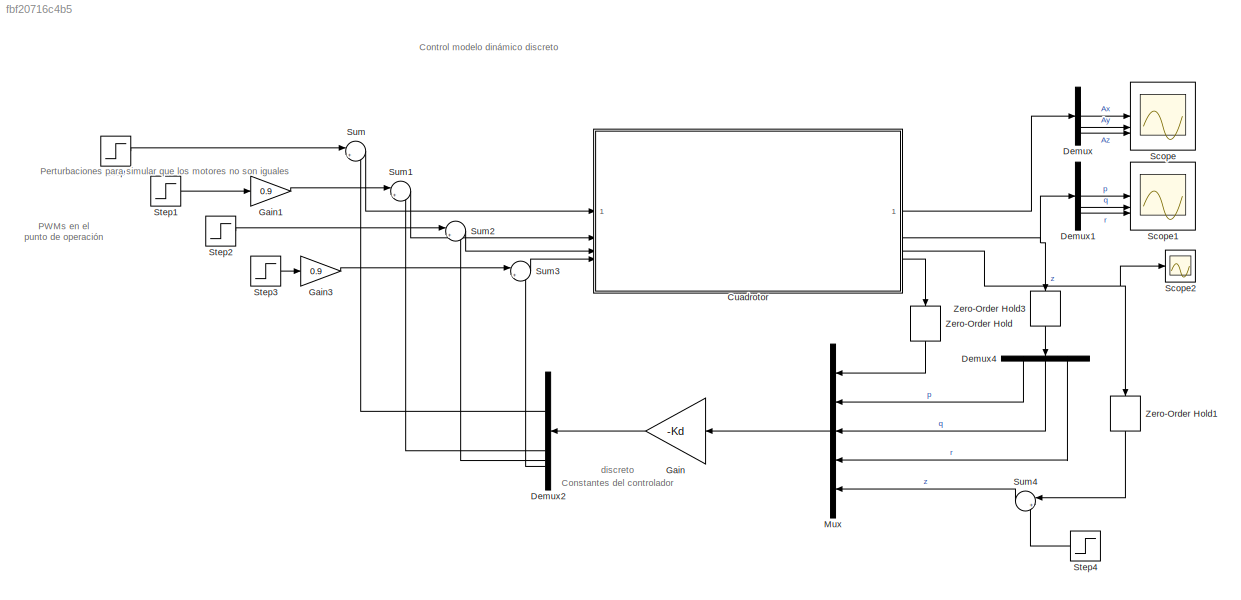
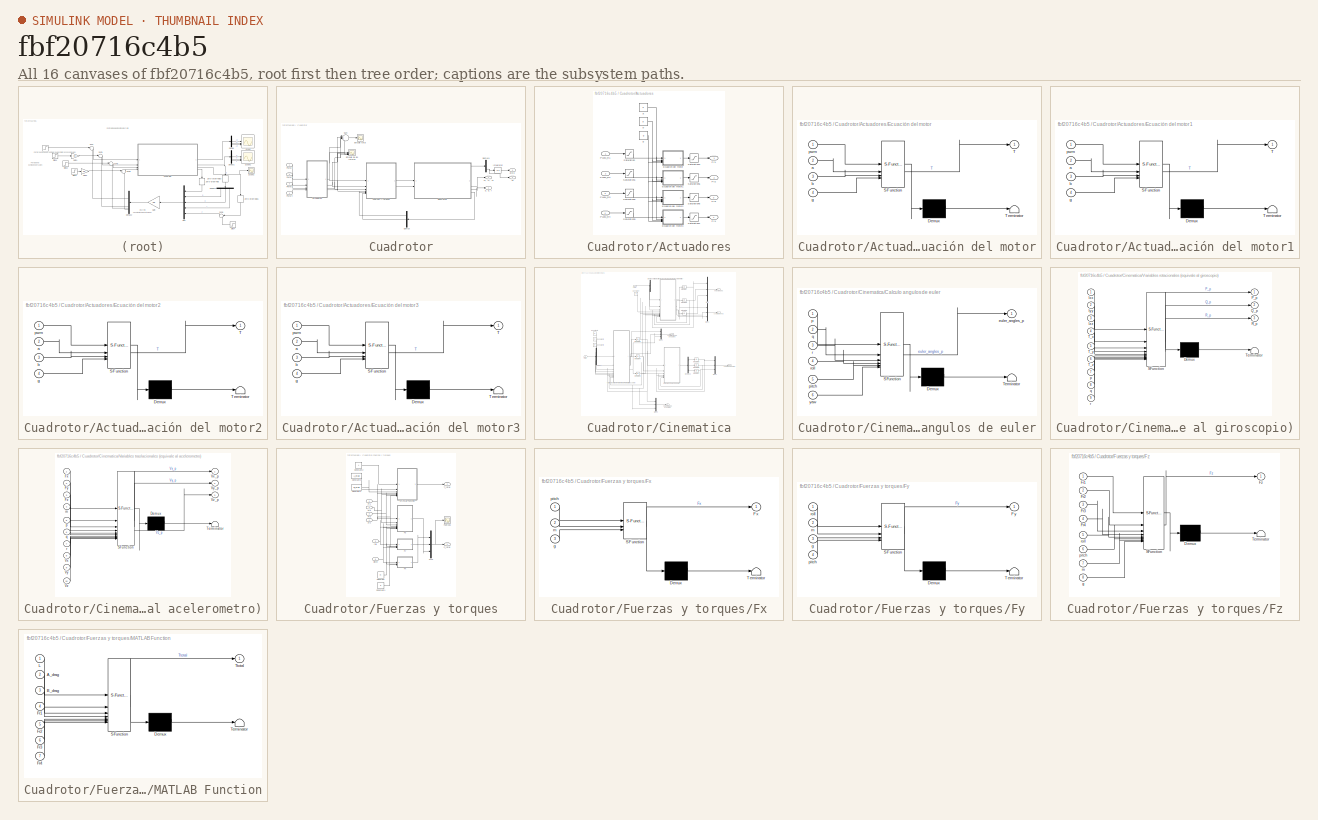
[diagram: thumbnail index - all 16 canvases of the model, root first then tree order]
MODEL slx_fbf20716c4b5
KIND model
CONFIG AbsTol = auto
CONFIG EnableMultiTasking = off
CONFIG FixedStep = auto
CONFIG MaxStep = auto
CONFIG MinStep = auto
CONFIG RelTol = 1e-3
CONFIG SampleTimeConstraint = Unconstrained
CONFIG SolverName = VariableStepAuto
CONFIG StartTime = 0.0
CONFIG StopTime = 10
BLOCK [SubSystem] Cuadrotor
BLOCK [SubSystem] Cuadrotor/Actuadores
BLOCK [SubSystem] Cuadrotor/Actuadores/Ecuación del motor
  ErrorFcn = Stateflow.Translate.translate
  LibrarySourceBlock = simulink/User-Defined\nFunctions/MATLAB Function
  PermitHierarchicalResolution = ExplicitOnly
  SFBlockType = MATLAB Function
  TreatAsAtomicUnit = on
BLOCK [Demux] Cuadrotor/Actuadores/Ecuación del motor/ Demux 
  Outputs = 1
BLOCK [S-Function] Cuadrotor/Actuadores/Ecuación del motor/ SFunction 
  EnableBusSupport = on
  FunctionName = sf_sfun
  PortCounts = [4 2]
  SFcnIsStateOwnerBlock = off
  SFunctionDeploymentMode = off
  Tag = Stateflow S-Function 2
BLOCK [Terminator] Cuadrotor/Actuadores/Ecuación del motor/ Terminator 
BLOCK [Outport] Cuadrotor/Actuadores/Ecuación del motor/T
BLOCK [Inport] Cuadrotor/Actuadores/Ecuación del motor/a
  Port = 2
BLOCK [Inport] Cuadrotor/Actuadores/Ecuación del motor/b
  Port = 3
BLOCK [Inport] Cuadrotor/Actuadores/Ecuación del motor/g
  Port = 4
BLOCK [Inport] Cuadrotor/Actuadores/Ecuación del motor/pwm
BLOCK [SubSystem] Cuadrotor/Actuadores/Ecuación del motor1
  ErrorFcn = Stateflow.Translate.translate
  LibrarySourceBlock = simulink/User-Defined\nFunctions/MATLAB Function
  PermitHierarchicalResolution = ExplicitOnly
  SFBlockType = MATLAB Function
  TreatAsAtomicUnit = on
BLOCK [Demux] Cuadrotor/Actuadores/Ecuación del motor1/ Demux 
  Outputs = 1
BLOCK [S-Function] Cuadrotor/Actuadores/Ecuación del motor1/ SFunction 
  EnableBusSupport = on
  FunctionName = sf_sfun
  PortCounts = [4 2]
  SFcnIsStateOwnerBlock = off
  SFunctionDeploymentMode = off
  Tag = Stateflow S-Function 1
BLOCK [Terminator] Cuadrotor/Actuadores/Ecuación del motor1/ Terminator 
BLOCK [Outport] Cuadrotor/Actuadores/Ecuación del motor1/T
BLOCK [Inport] Cuadrotor/Actuadores/Ecuación del motor1/a
  Port = 2
BLOCK [Inport] Cuadrotor/Actuadores/Ecuación del motor1/b
  Port = 3
BLOCK [Inport] Cuadrotor/Actuadores/Ecuación del motor1/g
  Port = 4
BLOCK [Inport] Cuadrotor/Actuadores/Ecuación del motor1/pwm
BLOCK [SubSystem] Cuadrotor/Actuadores/Ecuación del motor2
  ErrorFcn = Stateflow.Translate.translate
  LibrarySourceBlock = simulink/User-Defined\nFunctions/MATLAB Function
  PermitHierarchicalResolution = ExplicitOnly
  SFBlockType = MATLAB Function
  TreatAsAtomicUnit = on
BLOCK [Demux] Cuadrotor/Actuadores/Ecuación del motor2/ Demux 
  Outputs = 1
BLOCK [S-Function] Cuadrotor/Actuadores/Ecuación del motor2/ SFunction 
  EnableBusSupport = on
  FunctionName = sf_sfun
  PortCounts = [4 2]
  SFcnIsStateOwnerBlock = off
  SFunctionDeploymentMode = off
  Tag = Stateflow S-Function 3
BLOCK [Terminator] Cuadrotor/Actuadores/Ecuación del motor2/ Terminator 
BLOCK [Outport] Cuadrotor/Actuadores/Ecuación del motor2/T
BLOCK [Inport] Cuadrotor/Actuadores/Ecuación del motor2/a
  Port = 2
BLOCK [Inport] Cuadrotor/Actuadores/Ecuación del motor2/b
  Port = 3
BLOCK [Inport] Cuadrotor/Actuadores/Ecuación del motor2/g
  Port = 4
BLOCK [Inport] Cuadrotor/Actuadores/Ecuación del motor2/pwm
BLOCK [SubSystem] Cuadrotor/Actuadores/Ecuación del motor3
  ErrorFcn = Stateflow.Translate.translate
  LibrarySourceBlock = simulink/User-Defined\nFunctions/MATLAB Function
  PermitHierarchicalResolution = ExplicitOnly
  SFBlockType = MATLAB Function
  TreatAsAtomicUnit = on
BLOCK [Demux] Cuadrotor/Actuadores/Ecuación del motor3/ Demux 
  Outputs = 1
BLOCK [S-Function] Cuadrotor/Actuadores/Ecuación del motor3/ SFunction 
  EnableBusSupport = on
  FunctionName = sf_sfun
  PortCounts = [4 2]
  SFcnIsStateOwnerBlock = off
  SFunctionDeploymentMode = off
  Tag = Stateflow S-Function 4
BLOCK [Terminator] Cuadrotor/Actuadores/Ecuación del motor3/ Terminator 
BLOCK [Outport] Cuadrotor/Actuadores/Ecuación del motor3/T
BLOCK [Inport] Cuadrotor/Actuadores/Ecuación del motor3/a
  Port = 2
BLOCK [Inport] Cuadrotor/Actuadores/Ecuación del motor3/b
  Port = 3
BLOCK [Inport] Cuadrotor/Actuadores/Ecuación del motor3/g
  Port = 4
BLOCK [Inport] Cuadrotor/Actuadores/Ecuación del motor3/pwm
BLOCK [Outport] Cuadrotor/Actuadores/Fr1
BLOCK [Outport] Cuadrotor/Actuadores/Fr2
  Port = 2
BLOCK [Outport] Cuadrotor/Actuadores/Fr3
  Port = 3
BLOCK [Outport] Cuadrotor/Actuadores/Fr4
  Port = 4
BLOCK [Inport] Cuadrotor/Actuadores/PWM_R1
BLOCK [Inport] Cuadrotor/Actuadores/PWM_R2
  Port = 2
BLOCK [Inport] Cuadrotor/Actuadores/PWM_R3
  Port = 3
BLOCK [Inport] Cuadrotor/Actuadores/PWM_R4
  Port = 4
BLOCK [Saturate] Cuadrotor/Actuadores/Saturation
  LowerLimit = 0.001
  UpperLimit = 0.002
BLOCK [Saturate] Cuadrotor/Actuadores/Saturation1
  LowerLimit = 0.001
  UpperLimit = 0.002
BLOCK [Saturate] Cuadrotor/Actuadores/Saturation2
  LowerLimit = 0.001
  UpperLimit = 0.002
BLOCK [Saturate] Cuadrotor/Actuadores/Saturation3
  LowerLimit = 0.001
  UpperLimit = 0.002
BLOCK [Saturate] Cuadrotor/Actuadores/Saturation4
  LowerLimit = 0
  UpperLimit = 10
BLOCK [Saturate] Cuadrotor/Actuadores/Saturation5
  LowerLimit = 0
  UpperLimit = 10
BLOCK [Saturate] Cuadrotor/Actuadores/Saturation6
  LowerLimit = 0
  UpperLimit = 10
BLOCK [Saturate] Cuadrotor/Actuadores/Saturation7
  LowerLimit = 0
  UpperLimit = 10
BLOCK [Constant] Cuadrotor/Actuadores/a
  Value = a
BLOCK [Constant] Cuadrotor/Actuadores/b
  Value = b
BLOCK [Constant] Cuadrotor/Actuadores/g
  Value = g
BLOCK [Outport] Cuadrotor/Altura
  Port = 3
BLOCK [Outport] Cuadrotor/Ax, Ay, Az
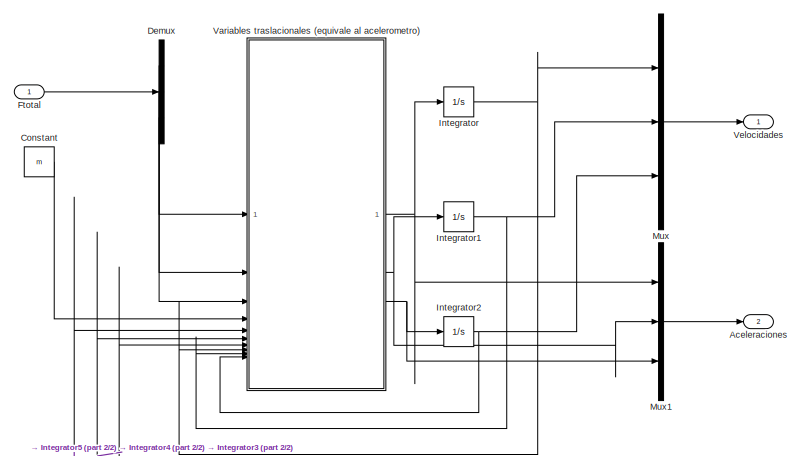
[diagram: Cuadrotor/Cinematica - part 1/2, top center region]
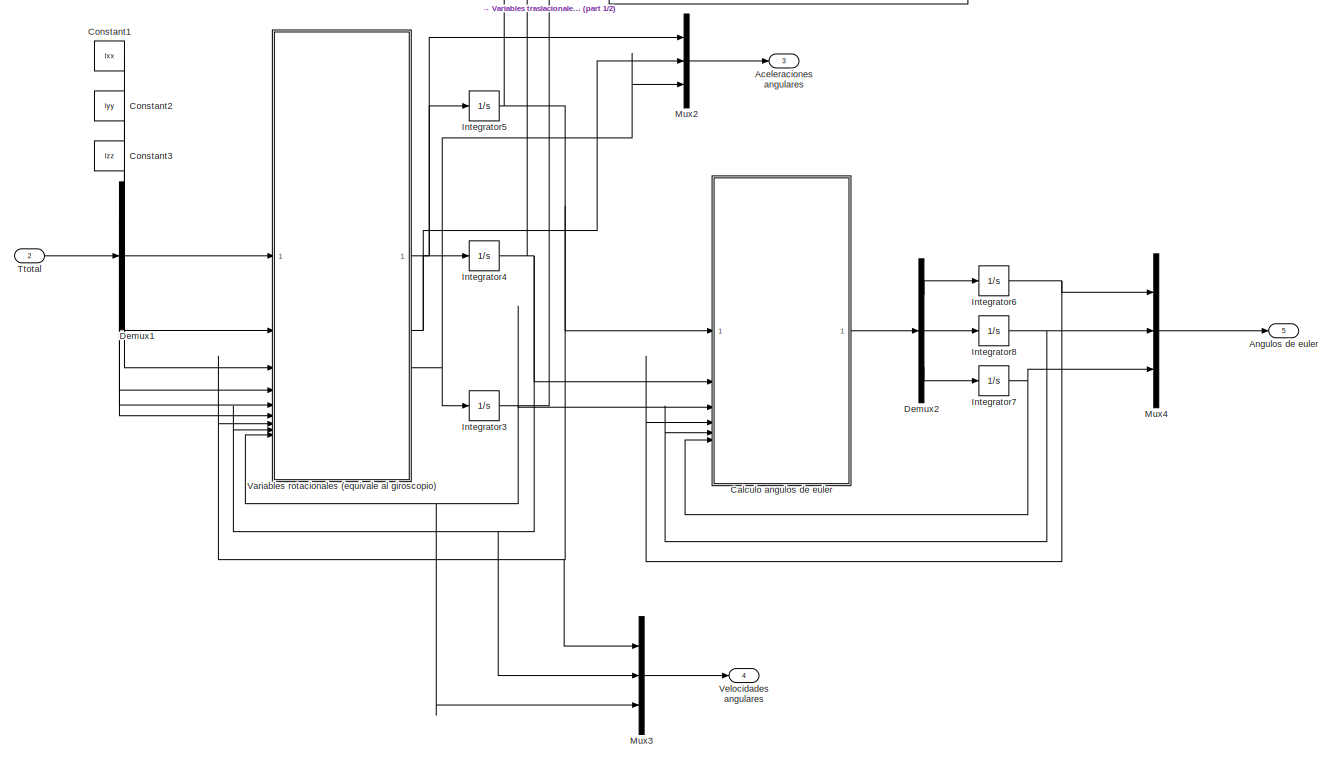
[diagram: Cuadrotor/Cinematica - part 2/2, full width, bottom band]
BLOCK [SubSystem] Cuadrotor/Cinematica
BLOCK [Outport] Cuadrotor/Cinematica/Aceleraciones
  NameLocation = right
  Port = 2
BLOCK [Outport] Cuadrotor/Cinematica/Aceleraciones angulares
  NameLocation = right
  Port = 3
BLOCK [Outport] Cuadrotor/Cinematica/Angulos de euler
  NameLocation = right
  Port = 5
BLOCK [SubSystem] Cuadrotor/Cinematica/Calculo angulos de euler
  ErrorFcn = Stateflow.Translate.translate
  LibrarySourceBlock = simulink/User-Defined\nFunctions/MATLAB Function
  PermitHierarchicalResolution = ExplicitOnly
  SFBlockType = MATLAB Function
  TreatAsAtomicUnit = on
BLOCK [Demux] Cuadrotor/Cinematica/Calculo angulos de euler/ Demux 
  Outputs = 1
BLOCK [S-Function] Cuadrotor/Cinematica/Calculo angulos de euler/ SFunction 
  EnableBusSupport = on
  FunctionName = sf_sfun
  PortCounts = [6 2]
  SFcnIsStateOwnerBlock = off
  SFunctionDeploymentMode = off
  Tag = Stateflow S-Function 11
BLOCK [Terminator] Cuadrotor/Cinematica/Calculo angulos de euler/ Terminator 
BLOCK [Outport] Cuadrotor/Cinematica/Calculo angulos de euler/euler_angles_p
BLOCK [Inport] Cuadrotor/Cinematica/Calculo angulos de euler/p
BLOCK [Inport] Cuadrotor/Cinematica/Calculo angulos de euler/pitch
  Port = 5
BLOCK [Inport] Cuadrotor/Cinematica/Calculo angulos de euler/q
  Port = 2
BLOCK [Inport] Cuadrotor/Cinematica/Calculo angulos de euler/r
  Port = 3
BLOCK [Inport] Cuadrotor/Cinematica/Calculo angulos de euler/roll
  Port = 4
BLOCK [Inport] Cuadrotor/Cinematica/Calculo angulos de euler/yaw
  Port = 6
BLOCK [Constant] Cuadrotor/Cinematica/Constant
  Value = m
BLOCK [Constant] Cuadrotor/Cinematica/Constant1
  Value = Ixx
BLOCK [Constant] Cuadrotor/Cinematica/Constant2
  Value = Iyy
BLOCK [Constant] Cuadrotor/Cinematica/Constant3
  Value = Izz
BLOCK [Demux] Cuadrotor/Cinematica/Demux
  Outputs = 3
BLOCK [Demux] Cuadrotor/Cinematica/Demux1
  Outputs = 3
BLOCK [Demux] Cuadrotor/Cinematica/Demux2
  Outputs = 3
BLOCK [Inport] Cuadrotor/Cinematica/Ftotal
BLOCK [Integrator] Cuadrotor/Cinematica/Integrator
BLOCK [Integrator] Cuadrotor/Cinematica/Integrator1
BLOCK [Integrator] Cuadrotor/Cinematica/Integrator2
BLOCK [Integrator] Cuadrotor/Cinematica/Integrator3
BLOCK [Integrator] Cuadrotor/Cinematica/Integrator4
BLOCK [Integrator] Cuadrotor/Cinematica/Integrator5
BLOCK [Integrator] Cuadrotor/Cinematica/Integrator6
BLOCK [Integrator] Cuadrotor/Cinematica/Integrator7
BLOCK [Integrator] Cuadrotor/Cinematica/Integrator8
BLOCK [Mux] Cuadrotor/Cinematica/Mux
  DisplayOption = bar
  Inputs = 3
BLOCK [Mux] Cuadrotor/Cinematica/Mux1
  DisplayOption = bar
  Inputs = 3
BLOCK [Mux] Cuadrotor/Cinematica/Mux2
  DisplayOption = bar
  Inputs = 3
BLOCK [Mux] Cuadrotor/Cinematica/Mux3
  DisplayOption = bar
  Inputs = 3
BLOCK [Mux] Cuadrotor/Cinematica/Mux4
  DisplayOption = bar
  Inputs = 3
BLOCK [Inport] Cuadrotor/Cinematica/Ttotal
  Port = 2
BLOCK [SubSystem] Cuadrotor/Cinematica/Variables rotacionales (equivale al giroscopio)
  ErrorFcn = Stateflow.Translate.translate
  LibrarySourceBlock = simulink/User-Defined\nFunctions/MATLAB Function
  PermitHierarchicalResolution = ExplicitOnly
  SFBlockType = MATLAB Function
  TreatAsAtomicUnit = on
BLOCK [Demux] Cuadrotor/Cinematica/Variables rotacionales (equivale al giroscopio)/ Demux 
  Outputs = 1
BLOCK [S-Function] Cuadrotor/Cinematica/Variables rotacionales (equivale al giroscopio)/ SFunction 
  EnableBusSupport = on
  FunctionName = sf_sfun
  PortCounts = [9 4]
  SFcnIsStateOwnerBlock = off
  SFunctionDeploymentMode = off
  Tag = Stateflow S-Function 10
BLOCK [Terminator] Cuadrotor/Cinematica/Variables rotacionales (equivale al giroscopio)/ Terminator 
BLOCK [Inport] Cuadrotor/Cinematica/Variables rotacionales (equivale al giroscopio)/Ixx
BLOCK [Inport] Cuadrotor/Cinematica/Variables rotacionales (equivale al giroscopio)/Iyy
  Port = 2
BLOCK [Inport] Cuadrotor/Cinematica/Variables rotacionales (equivale al giroscopio)/Izz
  Port = 3
BLOCK [Outport] Cuadrotor/Cinematica/Variables rotacionales (equivale al giroscopio)/P_p
BLOCK [Outport] Cuadrotor/Cinematica/Variables rotacionales (equivale al giroscopio)/Q_p
  Port = 2
BLOCK [Outport] Cuadrotor/Cinematica/Variables rotacionales (equivale al giroscopio)/R_p
  Port = 3
BLOCK [Inport] Cuadrotor/Cinematica/Variables rotacionales (equivale al giroscopio)/T_x
  Port = 4
BLOCK [Inport] Cuadrotor/Cinematica/Variables rotacionales (equivale al giroscopio)/T_y
  Port = 5
BLOCK [Inport] Cuadrotor/Cinematica/Variables rotacionales (equivale al giroscopio)/T_z
  Port = 6
BLOCK [Inport] Cuadrotor/Cinematica/Variables rotacionales (equivale al giroscopio)/p
  Port = 7
BLOCK [Inport] Cuadrotor/Cinematica/Variables rotacionales (equivale al giroscopio)/q
  Port = 8
BLOCK [Inport] Cuadrotor/Cinematica/Variables rotacionales (equivale al giroscopio)/r
  Port = 9
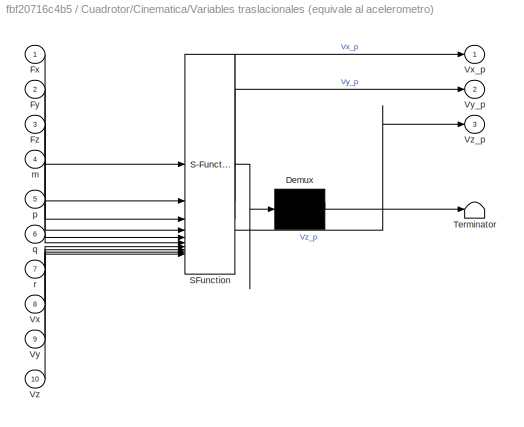
BLOCK [SubSystem] Cuadrotor/Cinematica/Variables traslacionales (equivale al acelerometro)
  ErrorFcn = Stateflow.Translate.translate
  LibrarySourceBlock = simulink/User-Defined\nFunctions/MATLAB Function
  PermitHierarchicalResolution = ExplicitOnly
  SFBlockType = MATLAB Function
  TreatAsAtomicUnit = on
BLOCK [Demux] Cuadrotor/Cinematica/Variables traslacionales (equivale al acelerometro)/ Demux 
  Outputs = 1
BLOCK [S-Function] Cuadrotor/Cinematica/Variables traslacionales (equivale al acelerometro)/ SFunction 
  EnableBusSupport = on
  FunctionName = sf_sfun
  PortCounts = [10 4]
  SFcnIsStateOwnerBlock = off
  SFunctionDeploymentMode = off
  Tag = Stateflow S-Function 9
BLOCK [Terminator] Cuadrotor/Cinematica/Variables traslacionales (equivale al acelerometro)/ Terminator 
BLOCK [Inport] Cuadrotor/Cinematica/Variables traslacionales (equivale al acelerometro)/Fx
BLOCK [Inport] Cuadrotor/Cinematica/Variables traslacionales (equivale al acelerometro)/Fy
  Port = 2
BLOCK [Inport] Cuadrotor/Cinematica/Variables traslacionales (equivale al acelerometro)/Fz
  Port = 3
BLOCK [Inport] Cuadrotor/Cinematica/Variables traslacionales (equivale al acelerometro)/Vx
  Port = 8
BLOCK [Outport] Cuadrotor/Cinematica/Variables traslacionales (equivale al acelerometro)/Vx_p
BLOCK [Inport] Cuadrotor/Cinematica/Variables traslacionales (equivale al acelerometro)/Vy
  Port = 9
BLOCK [Outport] Cuadrotor/Cinematica/Variables traslacionales (equivale al acelerometro)/Vy_p
  Port = 2
BLOCK [Inport] Cuadrotor/Cinematica/Variables traslacionales (equivale al acelerometro)/Vz
  Port = 10
BLOCK [Outport] Cuadrotor/Cinematica/Variables traslacionales (equivale al acelerometro)/Vz_p
  Port = 3
BLOCK [Inport] Cuadrotor/Cinematica/Variables traslacionales (equivale al acelerometro)/m
  Port = 4
BLOCK [Inport] Cuadrotor/Cinematica/Variables traslacionales (equivale al acelerometro)/p
  Port = 5
BLOCK [Inport] Cuadrotor/Cinematica/Variables traslacionales (equivale al acelerometro)/q
  Port = 6
BLOCK [Inport] Cuadrotor/Cinematica/Variables traslacionales (equivale al acelerometro)/r
  Port = 7
BLOCK [Outport] Cuadrotor/Cinematica/Velocidades
  NameLocation = right
BLOCK [Outport] Cuadrotor/Cinematica/Velocidades angulares
  NameLocation = right
  Port = 4
BLOCK [Demux] Cuadrotor/Demux
  Outputs = 3
BLOCK [Demux] Cuadrotor/Demux1
  Outputs = 3
BLOCK [Scope] Cuadrotor/Empuje de los rotores
  Floating = off
  NumInputPorts = 4
  ScopeSpecificationString = Simulink.scopes.TimeScopeBlockCfg('CurrentConfiguration', extmgr.ConfigurationSet(extmgr.Configuration('Core','General UI',true),extmgr.Configuration('Core','Source UI',true),extmgr.Configuration('Sources','WiredSimulink',true),extmgr.Configuration('Visuals','Time Domain',true,'SerializedDisplays',{struct('MinYLimReal','1.4525','MaxYLimReal','3.4525','YLabelReal','','MinYLimMag','1.4525','MaxYLimM...<+1545ch>
BLOCK [Scope] Cuadrotor/Empuje total
  Floating = off
  NumInputPorts = 1
  ScopeSpecificationString = Simulink.scopes.TimeScopeBlockCfg('CurrentConfiguration', extmgr.ConfigurationSet(extmgr.Configuration('Core','General UI',true),extmgr.Configuration('Core','Source UI',true),extmgr.Configuration('Sources','WiredSimulink',true,'DataLoggingVariableName','ScopeData1'),extmgr.Configuration('Visuals','Time Domain',true,'SerializedDisplays',{struct('MinYLimReal','8.81','MaxYLimReal','10.81','YLabelReal...<+1382ch>
BLOCK [SubSystem] Cuadrotor/Fuerzas y torques
BLOCK [Constant] Cuadrotor/Fuerzas y torques/Constant
  Value = m
BLOCK [Constant] Cuadrotor/Fuerzas y torques/Constant1
  Value = g
BLOCK [Constant] Cuadrotor/Fuerzas y torques/Constant2
  Value = L
BLOCK [Constant] Cuadrotor/Fuerzas y torques/Constant3
  Value = A_drag
BLOCK [Constant] Cuadrotor/Fuerzas y torques/Constant4
  Value = B_drag
BLOCK [Outport] Cuadrotor/Fuerzas y torques/F_total
BLOCK [Inport] Cuadrotor/Fuerzas y torques/Fr1
BLOCK [Inport] Cuadrotor/Fuerzas y torques/Fr2
  Port = 2
BLOCK [Inport] Cuadrotor/Fuerzas y torques/Fr3
  Port = 3
BLOCK [Inport] Cuadrotor/Fuerzas y torques/Fr4
  Port = 4
BLOCK [Scope] Cuadrotor/Fuerzas y torques/Fuerzas
  Floating = off
  NumInputPorts = 1
  ScopeSpecificationString = Simulink.scopes.TimeScopeBlockCfg('CurrentConfiguration', extmgr.ConfigurationSet(extmgr.Configuration('Core','General UI',true),extmgr.Configuration('Core','Source UI',true),extmgr.Configuration('Sources','WiredSimulink',true,'DataLoggingVariableName','ScopeData2'),extmgr.Configuration('Visuals','Time Domain',true,'SerializedDisplays',{struct('MinYLimReal','-12.95502','MaxYLimReal','20.99659','YL...<+1417ch>
BLOCK [SubSystem] Cuadrotor/Fuerzas y torques/Fx
  ErrorFcn = Stateflow.Translate.translate
  LibrarySourceBlock = simulink/User-Defined\nFunctions/MATLAB Function
  PermitHierarchicalResolution = ExplicitOnly
  SFBlockType = MATLAB Function
  TreatAsAtomicUnit = on
BLOCK [Demux] Cuadrotor/Fuerzas y torques/Fx/ Demux 
  Outputs = 1
BLOCK [S-Function] Cuadrotor/Fuerzas y torques/Fx/ SFunction 
  EnableBusSupport = on
  FunctionName = sf_sfun
  PortCounts = [3 2]
  SFcnIsStateOwnerBlock = off
  SFunctionDeploymentMode = off
  Tag = Stateflow S-Function 5
BLOCK [Terminator] Cuadrotor/Fuerzas y torques/Fx/ Terminator 
BLOCK [Outport] Cuadrotor/Fuerzas y torques/Fx/Fx
BLOCK [Inport] Cuadrotor/Fuerzas y torques/Fx/g
  Port = 3
BLOCK [Inport] Cuadrotor/Fuerzas y torques/Fx/m
  Port = 2
BLOCK [Inport] Cuadrotor/Fuerzas y torques/Fx/pitch
BLOCK [SubSystem] Cuadrotor/Fuerzas y torques/Fy
  ErrorFcn = Stateflow.Translate.translate
  LibrarySourceBlock = simulink/User-Defined\nFunctions/MATLAB Function
  PermitHierarchicalResolution = ExplicitOnly
  SFBlockType = MATLAB Function
  TreatAsAtomicUnit = on
BLOCK [Demux] Cuadrotor/Fuerzas y torques/Fy/ Demux 
  Outputs = 1
BLOCK [S-Function] Cuadrotor/Fuerzas y torques/Fy/ SFunction 
  EnableBusSupport = on
  FunctionName = sf_sfun
  PortCounts = [4 2]
  SFcnIsStateOwnerBlock = off
  SFunctionDeploymentMode = off
  Tag = Stateflow S-Function 6
BLOCK [Terminator] Cuadrotor/Fuerzas y torques/Fy/ Terminator 
BLOCK [Outport] Cuadrotor/Fuerzas y torques/Fy/Fy
BLOCK [Inport] Cuadrotor/Fuerzas y torques/Fy/g
  Port = 3
BLOCK [Inport] Cuadrotor/Fuerzas y torques/Fy/m
  Port = 2
BLOCK [Inport] Cuadrotor/Fuerzas y torques/Fy/pitch
  Port = 4
BLOCK [Inport] Cuadrotor/Fuerzas y torques/Fy/roll
BLOCK [SubSystem] Cuadrotor/Fuerzas y torques/Fz
  ErrorFcn = Stateflow.Translate.translate
  LibrarySourceBlock = simulink/User-Defined\nFunctions/MATLAB Function
  PermitHierarchicalResolution = ExplicitOnly
  SFBlockType = MATLAB Function
  TreatAsAtomicUnit = on
BLOCK [Demux] Cuadrotor/Fuerzas y torques/Fz/ Demux 
  Outputs = 1
BLOCK [S-Function] Cuadrotor/Fuerzas y torques/Fz/ SFunction 
  EnableBusSupport = on
  FunctionName = sf_sfun
  PortCounts = [8 2]
  SFcnIsStateOwnerBlock = off
  SFunctionDeploymentMode = off
  Tag = Stateflow S-Function 7
BLOCK [Terminator] Cuadrotor/Fuerzas y torques/Fz/ Terminator 
BLOCK [Inport] Cuadrotor/Fuerzas y torques/Fz/Fr1
BLOCK [Inport] Cuadrotor/Fuerzas y torques/Fz/Fr2
  Port = 2
BLOCK [Inport] Cuadrotor/Fuerzas y torques/Fz/Fr3
  Port = 3
BLOCK [Inport] Cuadrotor/Fuerzas y torques/Fz/Fr4
  Port = 4
BLOCK [Outport] Cuadrotor/Fuerzas y torques/Fz/Fz
BLOCK [Inport] Cuadrotor/Fuerzas y torques/Fz/g
  Port = 8
BLOCK [Inport] Cuadrotor/Fuerzas y torques/Fz/m
  Port = 7
BLOCK [Inport] Cuadrotor/Fuerzas y torques/Fz/pitch
  Port = 6
BLOCK [Inport] Cuadrotor/Fuerzas y torques/Fz/roll
  Port = 5
BLOCK [SubSystem] Cuadrotor/Fuerzas y torques/MATLAB Function
  ErrorFcn = Stateflow.Translate.translate
  LibrarySourceBlock = simulink/User-Defined\nFunctions/MATLAB Function
  PermitHierarchicalResolution = ExplicitOnly
  SFBlockType = MATLAB Function
  TreatAsAtomicUnit = on
BLOCK [Demux] Cuadrotor/Fuerzas y torques/MATLAB Function/ Demux 
  Outputs = 1
BLOCK [S-Function] Cuadrotor/Fuerzas y torques/MATLAB Function/ SFunction 
  EnableBusSupport = on
  FunctionName = sf_sfun
  PortCounts = [7 2]
  SFcnIsStateOwnerBlock = off
  SFunctionDeploymentMode = off
  Tag = Stateflow S-Function 8
BLOCK [Terminator] Cuadrotor/Fuerzas y torques/MATLAB Function/ Terminator 
BLOCK [Inport] Cuadrotor/Fuerzas y torques/MATLAB Function/A_drag
  Port = 2
BLOCK [Inport] Cuadrotor/Fuerzas y torques/MATLAB Function/B_drag
  Port = 3
BLOCK [Inport] Cuadrotor/Fuerzas y torques/MATLAB Function/Fr1
  Port = 4
BLOCK [Inport] Cuadrotor/Fuerzas y torques/MATLAB Function/Fr2
  Port = 5
BLOCK [Inport] Cuadrotor/Fuerzas y torques/MATLAB Function/Fr3
  Port = 6
BLOCK [Inport] Cuadrotor/Fuerzas y torques/MATLAB Function/Fr4
  Port = 7
BLOCK [Inport] Cuadrotor/Fuerzas y torques/MATLAB Function/L
BLOCK [Outport] Cuadrotor/Fuerzas y torques/MATLAB Function/Ttotal
BLOCK [Mux] Cuadrotor/Fuerzas y torques/Mux
  DisplayOption = bar
  Inputs = 3
BLOCK [Outport] Cuadrotor/Fuerzas y torques/T_total
  NameLocation = top
  Port = 2
BLOCK [Inport] Cuadrotor/Fuerzas y torques/pitch
  Port = 6
BLOCK [Inport] Cuadrotor/Fuerzas y torques/roll
  Port = 5
BLOCK [Integrator] Cuadrotor/Integrator
BLOCK [Inport] Cuadrotor/PWM1
BLOCK [Inport] Cuadrotor/PWM2
  Port = 2
BLOCK [Inport] Cuadrotor/PWM3
  Port = 3
BLOCK [Inport] Cuadrotor/PWM4
  Port = 4
BLOCK [Sum] Cuadrotor/Sum
  Inputs = |++++
BLOCK [Outport] Cuadrotor/Vz
  Port = 4
BLOCK [Outport] Cuadrotor/p, q, r
  Port = 2
BLOCK [Demux] Demux
  Outputs = 3
BLOCK [Demux] Demux1
  Outputs = 3
BLOCK [Demux] Demux2
BLOCK [Demux] Demux4
  NameLocation = left
  Outputs = 3
BLOCK [Gain] Gain
  Gain = -Kd
  Multiplication = Matrix(K*u)
BLOCK [Gain] Gain1
  Gain = 0.9
BLOCK [Gain] Gain3
  Gain = 0.9
BLOCK [Mux] Mux
  DisplayOption = bar
  Inputs = 5
BLOCK [Scope] Scope
  Floating = off
  NumInputPorts = 3
  ScopeSpecificationString = Simulink.scopes.TimeScopeBlockCfg('CurrentConfiguration', extmgr.ConfigurationSet(extmgr.Configuration('Core','General UI',true),extmgr.Configuration('Core','Source UI',true),extmgr.Configuration('Sources','WiredSimulink',true,'DataLoggingVariableName','ScopeData1'),extmgr.Configuration('Visuals','Time Domain',true,'SerializedDisplays',{struct('MinYLimReal','-24444.4005','MaxYLimReal','24225.4611'...<+1434ch>
BLOCK [Scope] Scope1
  Floating = off
  NumInputPorts = 3
  ScopeSpecificationString = Simulink.scopes.TimeScopeBlockCfg('CurrentConfiguration', extmgr.ConfigurationSet(extmgr.Configuration('Core','General UI',true),extmgr.Configuration('Core','Source UI',true),extmgr.Configuration('Sources','WiredSimulink',true,'DataLoggingVariableName','ScopeData2'),extmgr.Configuration('Visuals','Time Domain',true,'SerializedDisplays',{struct('MinYLimReal','-4721.79808','MaxYLimReal','4775.50391'...<+1430ch>
BLOCK [Scope] Scope2
  Floating = off
  NumInputPorts = 1
  ScopeSpecificationString = Simulink.scopes.TimeScopeBlockCfg('CurrentConfiguration', extmgr.ConfigurationSet(extmgr.Configuration('Core','General UI',true),extmgr.Configuration('Core','Source UI',true),extmgr.Configuration('Sources','WiredSimulink',true,'DataLoggingVariableName','ScopeData3'),extmgr.Configuration('Visuals','Time Domain',true,'SerializedDisplays',{struct('MinYLimReal','-0.0323','MaxYLimReal','0.21767','YLabe...<+1423ch>
BLOCK [Step] Step
  After = P0
  SampleTime = 0
  Time = 0
BLOCK [Step] Step1
  After = P0
  SampleTime = 0
  Time = 0
BLOCK [Step] Step2
  After = P0
  SampleTime = 0
  Time = 0
BLOCK [Step] Step3
  After = P0
  SampleTime = 0
  Time = 0
BLOCK [Step] Step4
  After = 0.2
  NameLocation = top
  SampleTime = 0
BLOCK [Sum] Sum
  Inputs = |++
BLOCK [Sum] Sum1
  Inputs = |++
BLOCK [Sum] Sum2
  Inputs = |++
BLOCK [Sum] Sum3
  Inputs = |++
BLOCK [Sum] Sum4
  Inputs = |+-
BLOCK [ZeroOrderHold] Zero-Order Hold
  NameLocation = left
  SampleTime = Ts
BLOCK [ZeroOrderHold] Zero-Order Hold1
  NameLocation = left
  SampleTime = Ts
BLOCK [ZeroOrderHold] Zero-Order Hold3
  NameLocation = left
  SampleTime = Ts
ANNOTATION (root): Constantes del controlador discreto
ANNOTATION (root): PWMs en el punto de operación
ANNOTATION (root): Control modelo dinámico discreto
ANNOTATION (root): Perturbaciones para simular que los motores no son iguales
LINE Cuadrotor/Actuadores/Ecuación del motor1:1 -> Cuadrotor/Actuadores/Saturation5:1
LINE Cuadrotor/Actuadores/Ecuación del motor2:1 -> Cuadrotor/Actuadores/Saturation6:1
LINE Cuadrotor/Actuadores/Ecuación del motor3:1 -> Cuadrotor/Actuadores/Saturation7:1
LINE Cuadrotor/Actuadores/Ecuación del motor:1 -> Cuadrotor/Actuadores/Saturation4:1
LINE Cuadrotor/Actuadores/PWM_R1:1 -> Cuadrotor/Actuadores/Saturation:1
LINE Cuadrotor/Actuadores/PWM_R2:1 -> Cuadrotor/Actuadores/Saturation1:1
LINE Cuadrotor/Actuadores/PWM_R3:1 -> Cuadrotor/Actuadores/Saturation2:1
LINE Cuadrotor/Actuadores/PWM_R4:1 -> Cuadrotor/Actuadores/Saturation3:1
LINE Cuadrotor/Actuadores/Saturation1:1 -> Cuadrotor/Actuadores/Ecuación del motor1:1
LINE Cuadrotor/Actuadores/Saturation2:1 -> Cuadrotor/Actuadores/Ecuación del motor2:1
LINE Cuadrotor/Actuadores/Saturation3:1 -> Cuadrotor/Actuadores/Ecuación del motor3:1
LINE Cuadrotor/Actuadores/Saturation4:1 -> Cuadrotor/Actuadores/Fr1:1
LINE Cuadrotor/Actuadores/Saturation5:1 -> Cuadrotor/Actuadores/Fr2:1
LINE Cuadrotor/Actuadores/Saturation6:1 -> Cuadrotor/Actuadores/Fr3:1
LINE Cuadrotor/Actuadores/Saturation7:1 -> Cuadrotor/Actuadores/Fr4:1
LINE Cuadrotor/Actuadores/Saturation:1 -> Cuadrotor/Actuadores/Ecuación del motor:1
NET Cuadrotor/Actuadores/a:1 -> Cuadrotor/Actuadores/Ecuación del motor1:2, Cuadrotor/Actuadores/Ecuación del motor2:2, Cuadrotor/Actuadores/Ecuación del motor3:2, Cuadrotor/Actuadores/Ecuación del motor:2
NET Cuadrotor/Actuadores/b:1 -> Cuadrotor/Actuadores/Ecuación del motor1:3, Cuadrotor/Actuadores/Ecuación del motor2:3, Cuadrotor/Actuadores/Ecuación del motor3:3, Cuadrotor/Actuadores/Ecuación del motor:3
NET Cuadrotor/Actuadores/g:1 -> Cuadrotor/Actuadores/Ecuación del motor1:4, Cuadrotor/Actuadores/Ecuación del motor2:4, Cuadrotor/Actuadores/Ecuación del motor3:4, Cuadrotor/Actuadores/Ecuación del motor:4
NET Cuadrotor/Actuadores:1 -> Cuadrotor/Empuje de los rotores:1, Cuadrotor/Fuerzas y torques:1, Cuadrotor/Sum:1
NET Cuadrotor/Actuadores:2 -> Cuadrotor/Empuje de los rotores:2, Cuadrotor/Fuerzas y torques:2, Cuadrotor/Sum:2
NET Cuadrotor/Actuadores:3 -> Cuadrotor/Empuje de los rotores:3, Cuadrotor/Fuerzas y torques:3, Cuadrotor/Sum:3
NET Cuadrotor/Actuadores:4 -> Cuadrotor/Empuje de los rotores:4, Cuadrotor/Fuerzas y torques:4, Cuadrotor/Sum:4
LINE Cuadrotor/Cinematica/Calculo angulos de euler:1 -> Cuadrotor/Cinematica/Demux2:1
LINE Cuadrotor/Cinematica/Constant1:1 -> Cuadrotor/Cinematica/Variables rotacionales (equivale al giroscopio):1
LINE Cuadrotor/Cinematica/Constant2:1 -> Cuadrotor/Cinematica/Variables rotacionales (equivale al giroscopio):2
LINE Cuadrotor/Cinematica/Constant3:1 -> Cuadrotor/Cinematica/Variables rotacionales (equivale al giroscopio):3
LINE Cuadrotor/Cinematica/Constant:1 -> Cuadrotor/Cinematica/Variables traslacionales (equivale al acelerometro):4
LINE Cuadrotor/Cinematica/Demux1:1 -> Cuadrotor/Cinematica/Variables rotacionales (equivale al giroscopio):4
LINE Cuadrotor/Cinematica/Demux1:2 -> Cuadrotor/Cinematica/Variables rotacionales (equivale al giroscopio):5
LINE Cuadrotor/Cinematica/Demux1:3 -> Cuadrotor/Cinematica/Variables rotacionales (equivale al giroscopio):6
LINE Cuadrotor/Cinematica/Demux2:1 -> Cuadrotor/Cinematica/Integrator6:1
LINE Cuadrotor/Cinematica/Demux2:2 -> Cuadrotor/Cinematica/Integrator8:1
LINE Cuadrotor/Cinematica/Demux2:3 -> Cuadrotor/Cinematica/Integrator7:1
LINE Cuadrotor/Cinematica/Demux:1 -> Cuadrotor/Cinematica/Variables traslacionales (equivale al acelerometro):1
LINE Cuadrotor/Cinematica/Demux:2 -> Cuadrotor/Cinematica/Variables traslacionales (equivale al acelerometro):2
LINE Cuadrotor/Cinematica/Demux:3 -> Cuadrotor/Cinematica/Variables traslacionales (equivale al acelerometro):3
LINE Cuadrotor/Cinematica/Ftotal:1 -> Cuadrotor/Cinematica/Demux:1
NET Cuadrotor/Cinematica/Integrator1:1 -> Cuadrotor/Cinematica/Mux:2, Cuadrotor/Cinematica/Variables traslacionales (equivale al acelerometro):9
NET Cuadrotor/Cinematica/Integrator2:1 -> Cuadrotor/Cinematica/Mux:3, Cuadrotor/Cinematica/Variables traslacionales (equivale al acelerometro):10
NET Cuadrotor/Cinematica/Integrator3:1 -> Cuadrotor/Cinematica/Calculo angulos de euler:3, Cuadrotor/Cinematica/Mux3:3, Cuadrotor/Cinematica/Variables rotacionales (equivale al giroscopio):9, Cuadrotor/Cinematica/Variables traslacionales (equivale al acelerometro):7
NET Cuadrotor/Cinematica/Integrator4:1 -> Cuadrotor/Cinematica/Calculo angulos de euler:2, Cuadrotor/Cinematica/Mux3:2, Cuadrotor/Cinematica/Variables rotacionales (equivale al giroscopio):8, Cuadrotor/Cinematica/Variables traslacionales (equivale al acelerometro):6
NET Cuadrotor/Cinematica/Integrator5:1 -> Cuadrotor/Cinematica/Calculo angulos de euler:1, Cuadrotor/Cinematica/Mux3:1, Cuadrotor/Cinematica/Variables rotacionales (equivale al giroscopio):7, Cuadrotor/Cinematica/Variables traslacionales (equivale al acelerometro):5
NET Cuadrotor/Cinematica/Integrator6:1 -> Cuadrotor/Cinematica/Calculo angulos de euler:4, Cuadrotor/Cinematica/Mux4:1
NET Cuadrotor/Cinematica/Integrator7:1 -> Cuadrotor/Cinematica/Calculo angulos de euler:6, Cuadrotor/Cinematica/Mux4:3
NET Cuadrotor/Cinematica/Integrator8:1 -> Cuadrotor/Cinematica/Calculo angulos de euler:5, Cuadrotor/Cinematica/Mux4:2
NET Cuadrotor/Cinematica/Integrator:1 -> Cuadrotor/Cinematica/Mux:1, Cuadrotor/Cinematica/Variables traslacionales (equivale al acelerometro):8
LINE Cuadrotor/Cinematica/Mux1:1 -> Cuadrotor/Cinematica/Aceleraciones:1
LINE Cuadrotor/Cinematica/Mux2:1 -> Cuadrotor/Cinematica/Aceleraciones angulares:1
LINE Cuadrotor/Cinematica/Mux3:1 -> Cuadrotor/Cinematica/Velocidades angulares:1
LINE Cuadrotor/Cinematica/Mux4:1 -> Cuadrotor/Cinematica/Angulos de euler:1
LINE Cuadrotor/Cinematica/Mux:1 -> Cuadrotor/Cinematica/Velocidades:1
LINE Cuadrotor/Cinematica/Ttotal:1 -> Cuadrotor/Cinematica/Demux1:1
NET Cuadrotor/Cinematica/Variables rotacionales (equivale al giroscopio):1 -> Cuadrotor/Cinematica/Integrator5:1, Cuadrotor/Cinematica/Mux2:1
NET Cuadrotor/Cinematica/Variables rotacionales (equivale al giroscopio):2 -> Cuadrotor/Cinematica/Integrator4:1, Cuadrotor/Cinematica/Mux2:2
NET Cuadrotor/Cinematica/Variables rotacionales (equivale al giroscopio):3 -> Cuadrotor/Cinematica/Integrator3:1, Cuadrotor/Cinematica/Mux2:3
NET Cuadrotor/Cinematica/Variables traslacionales (equivale al acelerometro):1 -> Cuadrotor/Cinematica/Integrator:1, Cuadrotor/Cinematica/Mux1:1
NET Cuadrotor/Cinematica/Variables traslacionales (equivale al acelerometro):2 -> Cuadrotor/Cinematica/Integrator1:1, Cuadrotor/Cinematica/Mux1:2
NET Cuadrotor/Cinematica/Variables traslacionales (equivale al acelerometro):3 -> Cuadrotor/Cinematica/Integrator2:1, Cuadrotor/Cinematica/Mux1:3
LINE Cuadrotor/Cinematica:1 -> Cuadrotor/Demux1:1
LINE Cuadrotor/Cinematica:2 -> Cuadrotor/Ax, Ay, Az:1
LINE Cuadrotor/Cinematica:3 -> Cuadrotor/p, q, r:1
LINE Cuadrotor/Cinematica:5 -> Cuadrotor/Demux:1
NET Cuadrotor/Demux1:3 -> Cuadrotor/Integrator:1, Cuadrotor/Vz:1
LINE Cuadrotor/Demux:1 -> Cuadrotor/Fuerzas y torques:5
LINE Cuadrotor/Demux:2 -> Cuadrotor/Fuerzas y torques:6
NET Cuadrotor/Fuerzas y torques/Constant1:1 -> Cuadrotor/Fuerzas y torques/Fx:3, Cuadrotor/Fuerzas y torques/Fy:3, Cuadrotor/Fuerzas y torques/Fz:8
LINE Cuadrotor/Fuerzas y torques/Constant2:1 -> Cuadrotor/Fuerzas y torques/MATLAB Function:1
LINE Cuadrotor/Fuerzas y torques/Constant3:1 -> Cuadrotor/Fuerzas y torques/MATLAB Function:2
LINE Cuadrotor/Fuerzas y torques/Constant4:1 -> Cuadrotor/Fuerzas y torques/MATLAB Function:3
NET Cuadrotor/Fuerzas y torques/Constant:1 -> Cuadrotor/Fuerzas y torques/Fx:2, Cuadrotor/Fuerzas y torques/Fy:2, Cuadrotor/Fuerzas y torques/Fz:7
NET Cuadrotor/Fuerzas y torques/Fr1:1 -> Cuadrotor/Fuerzas y torques/Fz:1, Cuadrotor/Fuerzas y torques/MATLAB Function:4
NET Cuadrotor/Fuerzas y torques/Fr2:1 -> Cuadrotor/Fuerzas y torques/Fz:2, Cuadrotor/Fuerzas y torques/MATLAB Function:5
NET Cuadrotor/Fuerzas y torques/Fr3:1 -> Cuadrotor/Fuerzas y torques/Fz:3, Cuadrotor/Fuerzas y torques/MATLAB Function:6
NET Cuadrotor/Fuerzas y torques/Fr4:1 -> Cuadrotor/Fuerzas y torques/Fz:4, Cuadrotor/Fuerzas y torques/MATLAB Function:7
LINE Cuadrotor/Fuerzas y torques/Fx:1 -> Cuadrotor/Fuerzas y torques/Mux:1
LINE Cuadrotor/Fuerzas y torques/Fy:1 -> Cuadrotor/Fuerzas y torques/Mux:2
LINE Cuadrotor/Fuerzas y torques/Fz:1 -> Cuadrotor/Fuerzas y torques/Mux:3
LINE Cuadrotor/Fuerzas y torques/MATLAB Function:1 -> Cuadrotor/Fuerzas y torques/T_total:1
NET Cuadrotor/Fuerzas y torques/Mux:1 -> Cuadrotor/Fuerzas y torques/F_total:1, Cuadrotor/Fuerzas y torques/Fuerzas:1
NET Cuadrotor/Fuerzas y torques/pitch:1 -> Cuadrotor/Fuerzas y torques/Fx:1, Cuadrotor/Fuerzas y torques/Fy:4, Cuadrotor/Fuerzas y torques/Fz:6
NET Cuadrotor/Fuerzas y torques/roll:1 -> Cuadrotor/Fuerzas y torques/Fy:1, Cuadrotor/Fuerzas y torques/Fz:5
LINE Cuadrotor/Fuerzas y torques:1 -> Cuadrotor/Cinematica:1
LINE Cuadrotor/Fuerzas y torques:2 -> Cuadrotor/Cinematica:2
LINE Cuadrotor/Integrator:1 -> Cuadrotor/Altura:1
LINE Cuadrotor/PWM1:1 -> Cuadrotor/Actuadores:1
LINE Cuadrotor/PWM2:1 -> Cuadrotor/Actuadores:2
LINE Cuadrotor/PWM3:1 -> Cuadrotor/Actuadores:3
LINE Cuadrotor/PWM4:1 -> Cuadrotor/Actuadores:4
LINE Cuadrotor/Sum:1 -> Cuadrotor/Empuje total:1
LINE Cuadrotor:1 -> Demux:1
NET Cuadrotor:2 -> Demux1:1, Zero-Order Hold3:1
NET Cuadrotor:3 -> Scope2:1, Zero-Order Hold1:1
LINE Cuadrotor:4 -> Zero-Order Hold:1
LINE Demux1:1 -> Scope1:1
LINE Demux1:2 -> Scope1:2
LINE Demux1:3 -> Scope1:3
LINE Demux2:1 -> Sum:2
LINE Demux2:2 -> Sum1:2
LINE Demux2:3 -> Sum2:2
LINE Demux2:4 -> Sum3:2
LINE Demux4:1 -> Mux:2
LINE Demux4:2 -> Mux:3
LINE Demux4:3 -> Mux:4
LINE Demux:1 -> Scope:1
LINE Demux:2 -> Scope:2
LINE Demux:3 -> Scope:3
LINE Gain1:1 -> Sum1:1
LINE Gain3:1 -> Sum3:1
LINE Gain:1 -> Demux2:1
LINE Mux:1 -> Gain:1
LINE Step1:1 -> Gain1:1
LINE Step2:1 -> Sum2:1
LINE Step3:1 -> Gain3:1
LINE Step4:1 -> Sum4:2
LINE Step:1 -> Sum:1
LINE Sum1:1 -> Cuadrotor:2
LINE Sum2:1 -> Cuadrotor:3
LINE Sum3:1 -> Cuadrotor:4
LINE Sum4:1 -> Mux:5
LINE Sum:1 -> Cuadrotor:1
LINE Zero-Order Hold1:1 -> Sum4:1
LINE Zero-Order Hold3:1 -> Demux4:1
LINE Zero-Order Hold:1 -> Mux:1
note: NET lines group one-source signal fan-out (src -> all destinations, sorted); 1:1 wires keep LINE
CHART Cuadrotor/Cinematica/Variables traslacionales (equivale al acelerometro) states=1 transitions=1
  STATE_LABEL 'eML_blk_kernel()'
  STATE_LABEL 'SCRIPT:\nfunction [Vx_p, Vy_p, Vz_p] = fcn(Fx, Fy, Fz, m, p, q, r, Vx, Vy, Vz)\n\nVx_p = 1/m * (Fx - (q*Vz - r*Vy));\nVy_p = 1/m * (Fy - (r*Vx - p*Vz));\nVz_p = 1/m * (Fz - (p*Vz - q*Vx));\n'
CHART Cuadrotor/Cinematica/Variables rotacionales (equivale al giroscopio) states=1 transitions=1
  STATE_LABEL 'eML_blk_kernel()'
  STATE_LABEL 'SCRIPT:\nfunction [P_p, Q_p, R_p] = fcn(Ixx, Iyy, Izz, T_x, T_y, T_z, p, q, r)\n\n% Los torques se nombran como\n% T_x = L\n% T_y = M\n% T_z = N\n \nP_p = 1/Ixx * (T_x - (Izz - Iyy) * q * r);\nQ_p = 1/Iyy * (T_y - (Ixx - Izz) * p * r);\nR_p = 1/Izz * (T_z - (Iyy - Ixx) * p * q);\n'
CHART Cuadrotor/Cinematica/Calculo angulos de euler states=1 transitions=1
  STATE_LABEL 'eML_blk_kernel()'
  STATE_LABEL 'SCRIPT:\nfunction euler_angles_p = fcn(p, q, r, roll, pitch, yaw)\n\neuler_angles_p = [1, sin(roll)*tan(pitch), cos(roll)*tan(pitch);\n        0, cos(roll), -sin(roll);\n        0, -sin(roll)/cos(pitch), cos(roll)/cos(pitch)] * [p; q; r];\n'
CHART Cuadrotor/Actuadores/Ecuación del motor1 states=1 transitions=1
  STATE_LABEL 'eML_blk_kernel()'
  STATE_LABEL 'SCRIPT:\nfunction T = fcn(pwm, a, b, g)\n\nT = (a*pwm + b)*g;\n'
CHART Cuadrotor/Actuadores/Ecuación del motor states=1 transitions=1
  STATE_LABEL 'eML_blk_kernel()'
  STATE_LABEL 'SCRIPT:\nfunction T = fcn(pwm, a, b, g)\n\nT = (a*pwm + b)*g;\n% a va en kg'
CHART Cuadrotor/Actuadores/Ecuación del motor2 states=1 transitions=1
  STATE_LABEL 'eML_blk_kernel()'
  STATE_LABEL 'SCRIPT:\nfunction T = fcn(pwm, a, b, g)\n\nT = (a*pwm + b)*g;\n'
CHART Cuadrotor/Actuadores/Ecuación del motor3 states=1 transitions=1
  STATE_LABEL 'eML_blk_kernel()'
  STATE_LABEL 'SCRIPT:\nfunction T = fcn(pwm, a, b, g)\n\nT = (a*pwm + b)*g;\n\n'
CHART Cuadrotor/Fuerzas y torques/Fx states=1 transitions=1
  STATE_LABEL 'eML_blk_kernel()'
  STATE_LABEL 'SCRIPT:\nfunction Fx = fcn(pitch, m, g)\n\nFx = -m*g*sin(pitch);\n'
CHART Cuadrotor/Fuerzas y torques/Fy states=1 transitions=1
  STATE_LABEL 'eML_blk_kernel()'
  STATE_LABEL 'SCRIPT:\nfunction Fy = fcn(roll, m, g, pitch)\n\nFy = m*g*sin(roll)*cos(pitch);\n'
CHART Cuadrotor/Fuerzas y torques/Fz states=1 transitions=1
  STATE_LABEL 'eML_blk_kernel()'
  STATE_LABEL 'SCRIPT:\nfunction Fz = fcn(Fr1, Fr2, Fr3, Fr4, roll, pitch, m, g)\n\nFz = (Fr1 + Fr2 + Fr3 + Fr4) - (m*g*cos(roll)*cos(pitch));\n'
CHART Cuadrotor/Fuerzas y torques/MATLAB Function states=1 transitions=1
  STATE_LABEL 'eML_blk_kernel()'
  STATE_LABEL 'SCRIPT:\nfunction Ttotal  = fcn(L, A_drag, B_drag, Fr1, Fr2, Fr3, Fr4)\n\n% Fr corresponde a las fuerzas de cada uno de los rotores\n\nTr1 = [L*Fr1; 0; 0];\nTr2 = [0; L*Fr2; 0];\nTr3 = [-L*Fr3; 0; 0];\nTr4 = [0; -L*Fr4; 0];\n\nQd1 = A_drag*(Fr1^(1.5)) + B_drag;\nQd2 = A_drag*(Fr2^(1.5)) + B_drag;\nQd3 = A_drag*(Fr3^(1.5)) + B_drag;\nQd4 = A_drag*(Fr4^(1.5)) + B_drag;\n\nTd1 = [0; 0; Qd1];\nTd2 = [0; 0; Qd2];\nTd3 ...<+104ch>'
CHART  states=0 transitions=0
CHART  states=0 transitions=0
CHART  states=0 transitions=0
CHART  states=0 transitions=0
CHART  states=0 transitions=0
CHART  states=0 transitions=0
CHART  states=0 transitions=0
CHART  states=0 transitions=0
CHART  states=0 transitions=0
CHART  states=0 transitions=0
CHART  states=0 transitions=0
